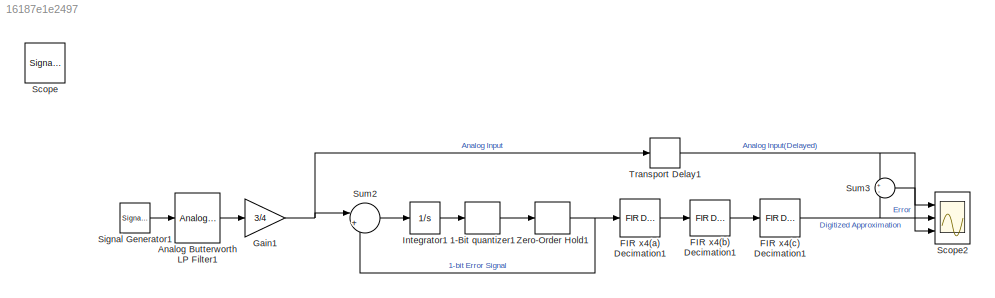
MODEL slx_16187e1e2497
KIND model
BLOCK [Signum] 1-Bit quantizer1
BLOCK [Reference] Analog Butterworth LP Filter1  REF=dsparch4/Analog
Filter Design
  N = 5
  Ports = [1, 1]
  Rp = 2
  Rs = 40
  SourceBlock = dsparch4/Analog\nFilter Design
  SourceType = Analog Filter Design
  Whi = 80
  Wlo = 2*pi*400
  filttype = Lowpass
  method = Butterworth
BLOCK [Reference] FIR x4(a) Decimation1  REF=dspmlti4/FIR
Decimation
  D = 4
  FilterObject = Hm_firdecim
  FilterSource = Specify via dialog
  InputProcessing = Elements as channels (sample based)
  LockScale = off
  Ports = [1, 1]
  SourceBlock = dspmlti4/FIR\nDecimation
  SourceType = FIR Decimation
  UserDataPersistent = on
  accumDataTypeStr = Inherit: Same as product output
  accumFracLength = 30
  accumLastDataTypeStr = Inherit: Same as product output
  accumMode = Same as product output
  accumWordLength = 32
  additionalParams = off
  allowOverrides = on
  filtStruct = Direct form
  firstCoeffDataTypeStr = Inherit: Same word length as input
  firstCoeffFracLength = 15
  firstCoeffLastDataTypeStr = Inherit: Same word length as input
  firstCoeffMax = []
  firstCoeffMin = []
  firstCoeffMode = Same word length as input
  firstCoeffWordLength = 16
  framing = Maintain input frame size
  h = fir1(31,0.15)
  inputOffset = 0
  outputBufInitCond = 0
  outputDataTypeStr = Inherit: Same as input
  outputFracLength = 15
  outputLastDataTypeStr = Inherit: Same as input
  outputMax = []
  outputMin = []
  outputMode = Same as input
  outputWordLength = 16
  overflowMode = off
  prodOutputDataTypeStr = Inherit: Same as input
  prodOutputFracLength = 30
  prodOutputLastDataTypeStr = Inherit: Same as input
  prodOutputMode = Same as input
  prodOutputWordLength = 32
  roundingMode = Floor
BLOCK [Reference] FIR x4(b) Decimation1  REF=dspmlti4/FIR
Decimation
  D = 4
  FilterObject = Hm_firdecim
  FilterSource = Specify via dialog
  InputProcessing = Elements as channels (sample based)
  LockScale = off
  Ports = [1, 1]
  SourceBlock = dspmlti4/FIR\nDecimation
  SourceType = FIR Decimation
  UserDataPersistent = on
  accumDataTypeStr = Inherit: Same as product output
  accumFracLength = 30
  accumLastDataTypeStr = Inherit: Same as product output
  accumMode = Same as product output
  accumWordLength = 32
  additionalParams = off
  allowOverrides = on
  filtStruct = Direct form
  firstCoeffDataTypeStr = Inherit: Same word length as input
  firstCoeffFracLength = 15
  firstCoeffLastDataTypeStr = Inherit: Same word length as input
  firstCoeffMax = []
  firstCoeffMin = []
  firstCoeffMode = Same word length as input
  firstCoeffWordLength = 16
  framing = Maintain input frame size
  h = fir1(31,0.15)
  inputOffset = 0
  outputBufInitCond = 0
  outputDataTypeStr = Inherit: Same as input
  outputFracLength = 15
  outputLastDataTypeStr = Inherit: Same as input
  outputMax = []
  outputMin = []
  outputMode = Same as input
  outputWordLength = 16
  overflowMode = off
  prodOutputDataTypeStr = Inherit: Same as input
  prodOutputFracLength = 30
  prodOutputLastDataTypeStr = Inherit: Same as input
  prodOutputMode = Same as input
  prodOutputWordLength = 32
  roundingMode = Floor
BLOCK [Reference] FIR x4(c) Decimation1  REF=dspmlti4/FIR
Decimation
  D = 4
  FilterObject = Hm_firdecim
  FilterSource = Specify via dialog
  InputProcessing = Elements as channels (sample based)
  LockScale = off
  Ports = [1, 1]
  SourceBlock = dspmlti4/FIR\nDecimation
  SourceType = FIR Decimation
  UserDataPersistent = on
  accumDataTypeStr = Inherit: Same as product output
  accumFracLength = 30
  accumLastDataTypeStr = Inherit: Same as product output
  accumMode = Same as product output
  accumWordLength = 32
  additionalParams = off
  allowOverrides = on
  filtStruct = Direct form
  firstCoeffDataTypeStr = Inherit: Same word length as input
  firstCoeffFracLength = 15
  firstCoeffLastDataTypeStr = Inherit: Same word length as input
  firstCoeffMax = []
  firstCoeffMin = []
  firstCoeffMode = Same word length as input
  firstCoeffWordLength = 16
  framing = Maintain input frame size
  h = fir1(31,0.15)
  inputOffset = 0
  outputBufInitCond = 0
  outputDataTypeStr = Inherit: Same as input
  outputFracLength = 15
  outputLastDataTypeStr = Inherit: Same as input
  outputMax = []
  outputMin = []
  outputMode = Same as input
  outputWordLength = 16
  overflowMode = off
  prodOutputDataTypeStr = Inherit: Same as input
  prodOutputFracLength = 30
  prodOutputLastDataTypeStr = Inherit: Same as input
  prodOutputMode = Same as input
  prodOutputWordLength = 32
  roundingMode = Floor
BLOCK [Gain] Gain1
  Gain = 3/4
BLOCK [Integrator] Integrator1
  Ports = [1, 1]
BLOCK [SignalViewerScope] Scope
  IOType = viewer
  MaxDataPoints = 7500
  NumInputPorts = 1
  Ports = []
  RefreshTime = 0.035000
  SaveName = ScopeData1
  ShowDataMarkers = off
  ShowLegends = off
BLOCK [Scope] Scope2
  DataFormat = StructureWithTime
  Floating = off
  MaxDataPoints = 15000
  NumInputPorts = 3
  Ports = [3]
  SampleTime = 0
  ShowLegends = off
  TimeRange = 0.025
  YMax = 1.1~1.1~0.25
  YMin = -1.1~-1.1~-0.25
  ZoomMode = xonly
BLOCK [SignalGenerator] Signal Generator1
  Frequency = 80
  Ports = [0, 1]
  WaveForm = square
BLOCK [Sum] Sum2
  IconShape = round
  Inputs = |+-
  Ports = [2, 1]
BLOCK [Sum] Sum3
  IconShape = round
  Inputs = +-
  Ports = [2, 1]
BLOCK [TransportDelay] Transport Delay1
  DelayTime = 357/512000
  Ports = [1, 1]
BLOCK [ZeroOrderHold] Zero-Order Hold1
  SampleTime = 1/512000
LINE 1-Bit quantizer1:1 -> Zero-Order Hold1:1
LINE Analog Butterworth LP Filter1:1 -> Gain1:1
LINE FIR x4(a) Decimation1:1 -> FIR x4(b) Decimation1:1
LINE FIR x4(b) Decimation1:1 -> FIR x4(c) Decimation1:1
NET FIR x4(c) Decimation1:1 -> Scope2:2, Sum3:2
NET Gain1:1 -> Sum2:1, Transport Delay1:1
LINE Integrator1:1 -> 1-Bit quantizer1:1
LINE Signal Generator1:1 -> Analog Butterworth LP Filter1:1
LINE Sum2:1 -> Integrator1:1
LINE Sum3:1 -> Scope2:3
NET Transport Delay1:1 -> Scope2:1, Sum3:1
NET Zero-Order Hold1:1 -> FIR x4(a) Decimation1:1, Sum2:2
note: NET lines group one-source signal fan-out (src -> all destinations, sorted); 1:1 wires keep LINE
